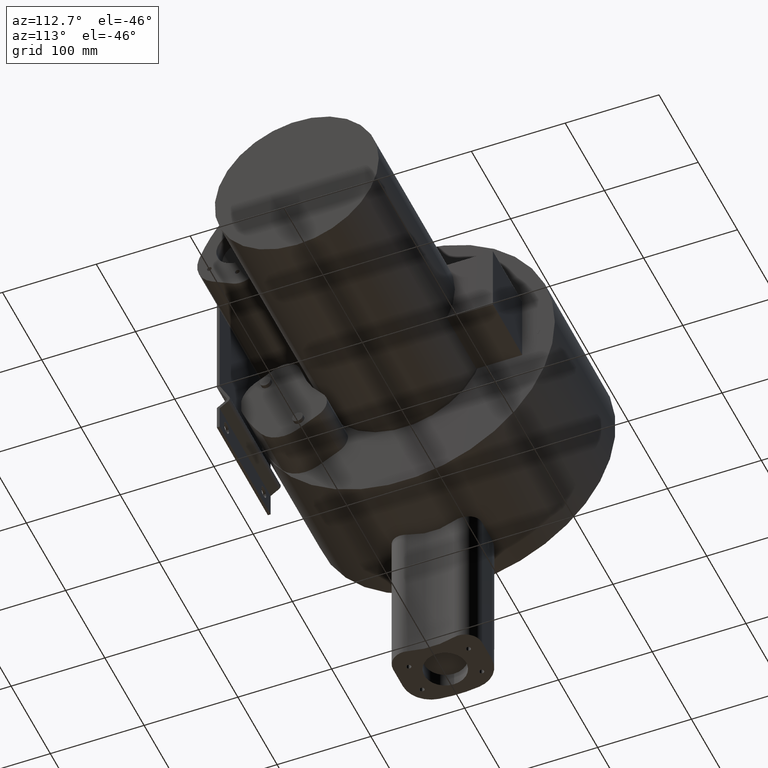
[diagram: clean part render]
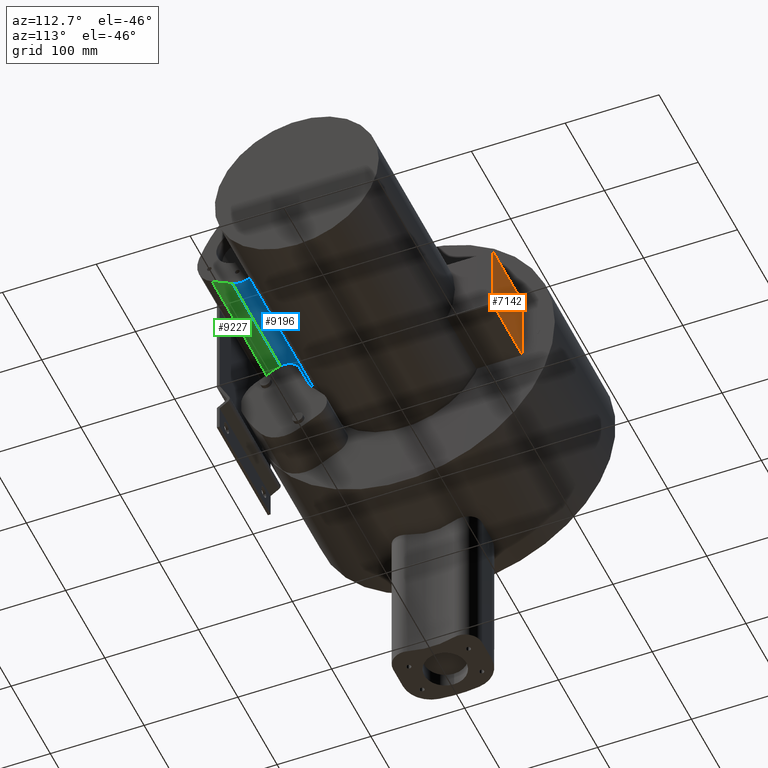
[diagram: same view with three faces highlighted in distinct colors, each labeled with its STEP entity id]
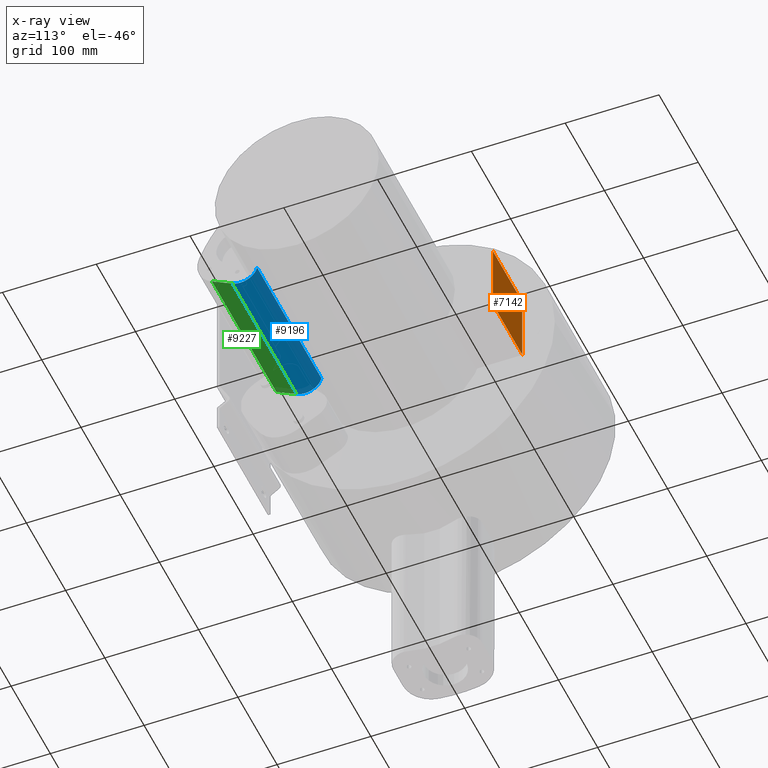
[diagram: x-ray of the same camera — body ghosted, the three highlighted faces saturated]
A machine part, auxiliary view with three faces highlighted in distinct colors.
The next image is the same camera in x-ray (body ghosted, the three faces saturated) — at least one of them is partly hidden behind the body in this view.
Their STEP definitions:

[orange] entity #7142 — the highlighted planar face has unit normal (0, 1, 0).
#7038=CARTESIAN_POINT('',(159.00000000000003,128.0,-37.5));
#7039=VERTEX_POINT('',#7038);
#7046=CARTESIAN_POINT('',(234.00000000000003,128.0,-37.5));
#7047=VERTEX_POINT('',#7046);
#7048=CARTESIAN_POINT('',(159.00000000000003,128.0,-37.5));
#7049=DIRECTION('',(1.0,0.0,0.0));
#7050=VECTOR('',#7049,75.0);
#7051=LINE('',#7048,#7050);
#7052=EDGE_CURVE('',#7039,#7047,#7051,.T.);
#7078=CARTESIAN_POINT('',(234.00000000000003,128.0,37.5));
#7079=VERTEX_POINT('',#7078);
#7080=CARTESIAN_POINT('',(234.00000000000003,128.0,-37.5));
#7081=DIRECTION('',(0.0,0.0,1.0));
#7082=VECTOR('',#7081,75.0);
#7083=LINE('',#7080,#7082);
#7084=EDGE_CURVE('',#7047,#7079,#7083,.T.);
#7109=CARTESIAN_POINT('',(159.00000000000003,128.0,37.5));
#7110=VERTEX_POINT('',#7109);
#7111=CARTESIAN_POINT('',(234.00000000000003,128.0,37.5));
#7112=DIRECTION('',(-1.0,0.0,0.0));
#7113=VECTOR('',#7112,75.0);
#7114=LINE('',#7111,#7113);
#7115=EDGE_CURVE('',#7079,#7110,#7114,.T.);
#7126=CARTESIAN_POINT('',(196.50000000000003,128.0,0.0));
#7127=DIRECTION('',(0.0,1.0,0.0));
#7128=DIRECTION('',(0.0,0.0,1.0));
#7129=AXIS2_PLACEMENT_3D('',#7126,#7127,#7128);
#7130=PLANE('',#7129);
#7131=ORIENTED_EDGE('',*,*,#7084,.F.);
#7132=ORIENTED_EDGE('',*,*,#7052,.F.);
#7133=CARTESIAN_POINT('',(159.00000000000003,128.0,37.5));
#7134=DIRECTION('',(0.0,0.0,-1.0));
#7135=VECTOR('',#7134,75.0);
#7136=LINE('',#7133,#7135);
#7137=EDGE_CURVE('',#7110,#7039,#7136,.T.);
#7138=ORIENTED_EDGE('',*,*,#7137,.F.);
#7139=ORIENTED_EDGE('',*,*,#7115,.F.);
#7140=EDGE_LOOP('',(#7131,#7132,#7138,#7139));
#7141=FACE_OUTER_BOUND('',#7140,.T.);
#7142=ADVANCED_FACE('',(#7141),#7130,.T.);

[blue] entity #9196 — the highlighted cylindrical surface (edge-blend (fillet) strip) has radius 18 mm, axis along (1, 0, 0).
#9155=CARTESIAN_POINT('',(155.0,-105.48533406291455,23.16990068246573));
#9156=DIRECTION('',(1.0,0.0,0.0));
#9157=DIRECTION('',(0.0,-0.473165915539233,-0.880973334654301));
#9158=AXIS2_PLACEMENT_3D('',#9155,#9156,#9157);
#9159=CYLINDRICAL_SURFACE('',#9158,18.0);
#9160=CARTESIAN_POINT('',(319.00000000000006,-87.90444505242877,19.308250568721448));
#9161=VERTEX_POINT('',#9160);
#9162=CARTESIAN_POINT('',(319.00000000000006,-114.00232054262075,7.312380658688305));
#9163=VERTEX_POINT('',#9162);
#9164=CARTESIAN_POINT('',(319.0,-105.48533406291455,23.16990068246573));
#9165=DIRECTION('',(-1.0,0.0,0.0));
#9166=DIRECTION('',(0.0,-0.473165915539233,-0.880973334654301));
#9167=AXIS2_PLACEMENT_3D('',#9164,#9165,#9166);
#9168=CIRCLE('',#9167,17.999999999999996);
#9169=EDGE_CURVE('',#9161,#9163,#9168,.T.);
#9170=ORIENTED_EDGE('',*,*,#9169,.T.);
#9171=CARTESIAN_POINT('',(155.0,-114.00232054262075,7.312380658688305));
#9172=VERTEX_POINT('',#9171);
#9173=CARTESIAN_POINT('',(155.0,-114.00232054262075,7.312380658688305));
#9174=DIRECTION('',(1.0,0.0,0.0));
#9175=VECTOR('',#9174,164.00000000000006);
#9176=LINE('',#9173,#9175);
#9177=EDGE_CURVE('',#9172,#9163,#9176,.T.);
#9178=ORIENTED_EDGE('',*,*,#9177,.F.);
#9179=CARTESIAN_POINT('',(155.0,-87.90444505242877,19.308250568721448));
#9180=VERTEX_POINT('',#9179);
#9181=CARTESIAN_POINT('',(155.0,-105.48533406291455,23.16990068246573));
#9182=DIRECTION('',(-1.0,0.0,0.0));
#9183=DIRECTION('',(0.0,-0.473165915539233,-0.880973334654301));
#9184=AXIS2_PLACEMENT_3D('',#9181,#9182,#9183);
#9185=CIRCLE('',#9184,17.999999999999996);
#9186=EDGE_CURVE('',#9180,#9172,#9185,.T.);
#9187=ORIENTED_EDGE('',*,*,#9186,.F.);
#9188=CARTESIAN_POINT('',(155.0,-87.90444505242877,19.308250568721448));
#9189=DIRECTION('',(1.0,0.0,0.0));
#9190=VECTOR('',#9189,164.00000000000006);
#9191=LINE('',#9188,#9190);
#9192=EDGE_CURVE('',#9180,#9161,#9191,.T.);
#9193=ORIENTED_EDGE('',*,*,#9192,.T.);
#9194=EDGE_LOOP('',(#9170,#9178,#9187,#9193));
#9195=FACE_OUTER_BOUND('',#9194,.T.);
#9196=ADVANCED_FACE('',(#9195),#9159,.T.);

[green] entity #9227 — the highlighted planar face has unit normal (0, -0.4732, -0.881).
#9162=CARTESIAN_POINT('',(319.00000000000006,-114.00232054262075,7.312380658688305));
#9163=VERTEX_POINT('',#9162);
#9171=CARTESIAN_POINT('',(155.0,-114.00232054262075,7.312380658688305));
#9172=VERTEX_POINT('',#9171);
#9173=CARTESIAN_POINT('',(155.0,-114.00232054262075,7.312380658688305));
#9174=DIRECTION('',(1.0,0.0,0.0));
#9175=VECTOR('',#9174,164.00000000000006);
#9176=LINE('',#9173,#9175);
#9177=EDGE_CURVE('',#9172,#9163,#9176,.T.);
#9197=CARTESIAN_POINT('',(155.0,-114.00232054262075,7.312380658688305));
#9198=DIRECTION('',(0.0,-0.473165915539233,-0.880973334654301));
#9199=DIRECTION('',(-1.0,0.0,0.0));
#9200=AXIS2_PLACEMENT_3D('',#9197,#9198,#9199);
#9201=PLANE('',#9200);
#9202=CARTESIAN_POINT('',(319.00000000000006,-135.95948542204536,19.105452723571752));
#9203=VERTEX_POINT('',#9202);
#9204=CARTESIAN_POINT('',(319.0,-114.00232054262074,7.312380658688303));
#9205=DIRECTION('',(0.0,-0.880973334654301,0.473165915539233));
#9206=VECTOR('',#9205,24.92375650398175);
#9207=LINE('',#9204,#9206);
#9208=EDGE_CURVE('',#9163,#9203,#9207,.T.);
#9209=ORIENTED_EDGE('',*,*,#9208,.T.);
#9210=CARTESIAN_POINT('',(155.0,-135.95948542204536,19.105452723571752));
#9211=VERTEX_POINT('',#9210);
#9212=CARTESIAN_POINT('',(155.0,-135.95948542204536,19.105452723571752));
#9213=DIRECTION('',(1.0,0.0,0.0));
#9214=VECTOR('',#9213,164.00000000000006);
#9215=LINE('',#9212,#9214);
#9216=EDGE_CURVE('',#9211,#9203,#9215,.T.);
#9217=ORIENTED_EDGE('',*,*,#9216,.F.);
#9218=CARTESIAN_POINT('',(155.0,-114.00232054262074,7.312380658688312));
#9219=DIRECTION('',(0.0,-0.880973334654301,0.473165915539233));
#9220=VECTOR('',#9219,24.923756503981778);
#9221=LINE('',#9218,#9220);
#9222=EDGE_CURVE('',#9172,#9211,#9221,.T.);
#9223=ORIENTED_EDGE('',*,*,#9222,.F.);
#9224=ORIENTED_EDGE('',*,*,#9177,.T.);
#9225=EDGE_LOOP('',(#9209,#9217,#9223,#9224));
#9226=FACE_OUTER_BOUND('',#9225,.T.);
#9227=ADVANCED_FACE('',(#9226),#9201,.T.);